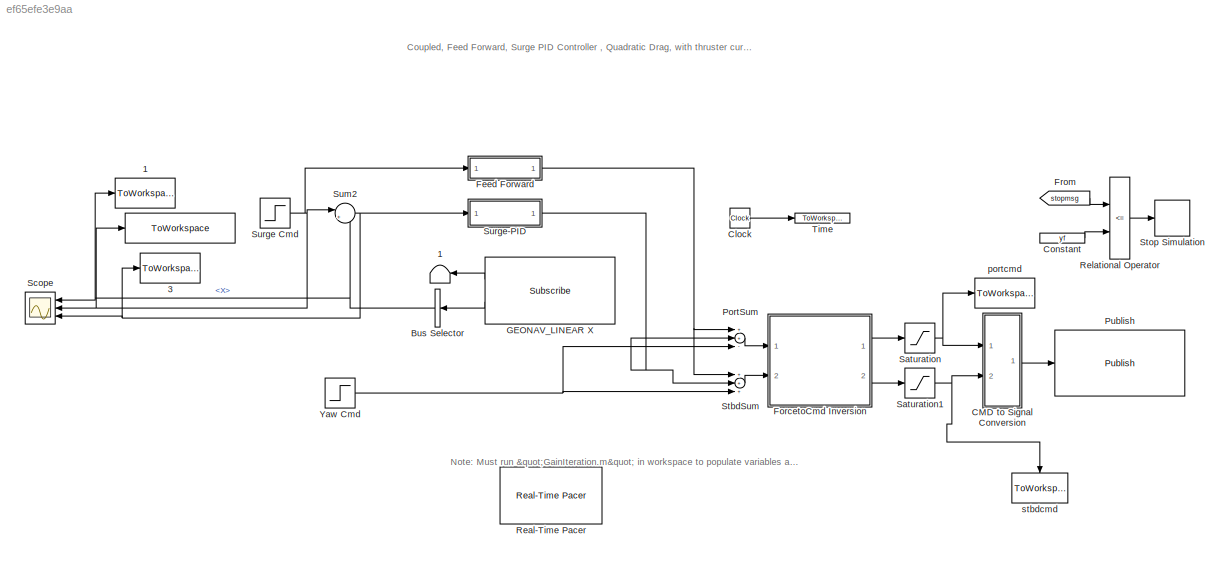
MODEL slx_ef65efe3e9aa
KIND model
CONFIG AbsTol = auto
CONFIG FixedStep = auto
CONFIG MaxStep = auto
CONFIG MinStep = auto
CONFIG RelTol = 1e-3
CONFIG SampleTimeConstraint = Unconstrained
CONFIG Solver = VariableStepAuto
CONFIG SolverMode = Auto
CONFIG SolverName = VariableStepAuto
CONFIG StartTime = 0.0
CONFIG StopTime = sim_time
BLOCK [ToWorkspace]  
  FixptAsFi = on
  MaxDataPoints = inf
  Ports = [1]
  SampleTime = -1
  Save2DSignal = 3-D array (concatenate along third dimension)
  VariableName = srgcmd
BLOCK [Terminator]  1
BLOCK [ToWorkspace]  3
  FixptAsFi = on
  MaxDataPoints = inf
  Ports = [1]
  SampleTime = -1
  Save2DSignal = 3-D array (concatenate along third dimension)
  VariableName = error
BLOCK [BusSelector] Bus Selector
  OutputSignals = Twist.Twist.Linear.X
  Ports = [1, 1]
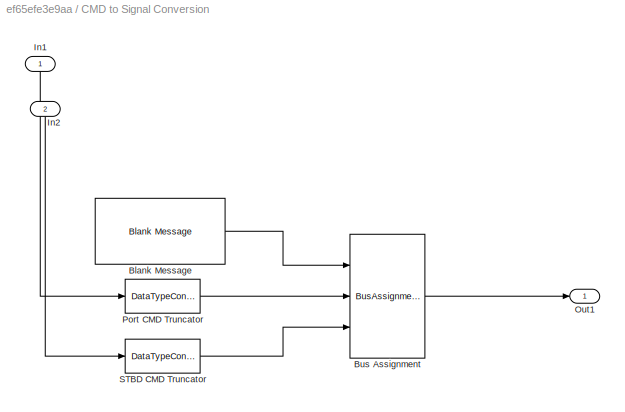
BLOCK [SubSystem] CMD to Signal Conversion
  Ports = [2, 1]
  RequestExecContextInheritance = off
  Variant = off
BLOCK [Reference] CMD to Signal Conversion/Blank Message  REF=robotlib/Blank Message
  Ports = [0, 1]
  SourceBlock = robotlib/Blank Message
  SourceLibraryInfo = This block requires Robotics System Toolbox
  SourceType = ROS Blank Message
BLOCK [BusAssignment] CMD to Signal Conversion/Bus Assignment
  AssignedSignals = Left,Right
  Ports = [3, 1]
BLOCK [Inport] CMD to Signal Conversion/In1
  IconDisplay = Port number
BLOCK [Inport] CMD to Signal Conversion/In2
  IconDisplay = Port number
  Port = 2
BLOCK [Outport] CMD to Signal Conversion/Out1
  IconDisplay = Port number
BLOCK [DataTypeConversion] CMD to Signal Conversion/Port CMD Truncator
  OutDataTypeStr = single
  RndMeth = Floor
  SaturateOnIntegerOverflow = off
BLOCK [DataTypeConversion] CMD to Signal Conversion/STBD CMD Truncator
  OutDataTypeStr = single
  RndMeth = Floor
  SaturateOnIntegerOverflow = off
BLOCK [Clock] Clock
BLOCK [Constant] Constant
  Commented = on
  Value = yf
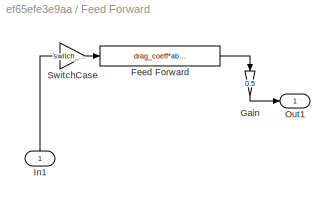
BLOCK [SubSystem] Feed Forward
  Ports = [1, 1]
  RequestExecContextInheritance = off
  Variant = off
BLOCK [Fcn] Feed Forward/Feed Forward
  Expr = drag_coeff*abs(u)*u
BLOCK [Gain] Feed Forward/Gain
  Gain = 0.5
  OutDataTypeStr = Inherit: Inherit via internal rule
  ParamDataTypeStr = Inherit: Inherit via internal rule
  SaturateOnIntegerOverflow = off
BLOCK [Inport] Feed Forward/In1
  IconDisplay = Port number
BLOCK [Outport] Feed Forward/Out1
  IconDisplay = Port number
BLOCK [Gain] Feed Forward/SwitchCase
  Gain = switch_case
  OutDataTypeStr = Inherit: Inherit via internal rule
  ParamDataTypeStr = Inherit: Inherit via internal rule
  SaturateOnIntegerOverflow = off
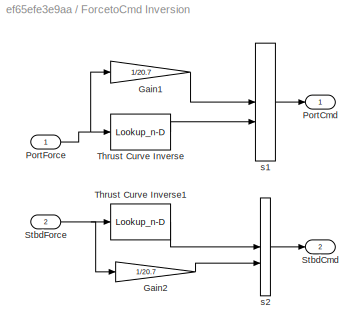
BLOCK [SubSystem] ForcetoCmd Inversion
  Ports = [2, 2]
  RequestExecContextInheritance = off
  Variant = off
BLOCK [Gain] ForcetoCmd Inversion/Gain1
  Gain = 1/20.7
  OutDataTypeStr = Inherit: Inherit via internal rule
  ParamDataTypeStr = Inherit: Inherit via internal rule
  SaturateOnIntegerOverflow = off
BLOCK [Gain] ForcetoCmd Inversion/Gain2
  Gain = 1/20.7
  OutDataTypeStr = Inherit: Inherit via internal rule
  ParamDataTypeStr = Inherit: Inherit via internal rule
  SaturateOnIntegerOverflow = off
BLOCK [Outport] ForcetoCmd Inversion/PortCmd
  IconDisplay = Port number
BLOCK [Inport] ForcetoCmd Inversion/PortForce
  IconDisplay = Port number
BLOCK [Outport] ForcetoCmd Inversion/StbdCmd
  IconDisplay = Port number
  Port = 2
BLOCK [Inport] ForcetoCmd Inversion/StbdForce
  IconDisplay = Port number
  Port = 2
BLOCK [Lookup_n-D] ForcetoCmd Inversion/Thrust Curve Inverse
  BreakpointsForDimension1 = table_data
  ExtrapMethod = Clip
  InternalRulePriority = Speed
  NumberOfTableDimensions = 1
  Ports = [1, 1]
  RndMeth = Simplest
  Table = breakpoints1
  UseLastTableValue = on
BLOCK [Lookup_n-D] ForcetoCmd Inversion/Thrust Curve Inverse1
  BreakpointsForDimension1 = table_data
  ExtrapMethod = Clip
  InternalRulePriority = Speed
  NumberOfTableDimensions = 1
  Ports = [1, 1]
  RndMeth = Simplest
  Table = breakpoints1
  UseLastTableValue = on
BLOCK [ManualSwitch] ForcetoCmd Inversion/s1 
  CurrentSetting = 0
BLOCK [ManualSwitch] ForcetoCmd Inversion/s2
BLOCK [From] From
  Commented = on
  GotoTag = stopmsg
BLOCK [Reference] GEONAV_LINEAR X  REF=robotlib/Subscribe
  Ports = [0, 2]
  SourceBlock = robotlib/Subscribe
  SourceLibraryInfo = This block requires Robotics System Toolbox
  SourceType = ROS Subscribe
BLOCK [Sum] PortSum
  InputSameDT = off
  Inputs = ++-
  OutDataTypeStr = Inherit: Inherit via internal rule
  Ports = [3, 1]
  SaturateOnIntegerOverflow = off
BLOCK [Reference] Publish  REF=robotlib/Publish
  Ports = [1]
  SourceBlock = robotlib/Publish
  SourceLibraryInfo = This block requires Robotics System Toolbox
  SourceType = ROS Publish
BLOCK [Reference] Real-Time Pacer  REF=realtime_pacer_lib/Real-Time Pacer
  Ports = []
  SourceBlock = realtime_pacer_lib/Real-Time Pacer
  SourceType = RealTime_Pacer
BLOCK [RelationalOperator] Relational Operator
  Commented = on
  InputSameDT = off
  Operator = <=
  OutDataTypeStr = boolean
  Ports = [2, 1]
BLOCK [Saturate] Saturation
  InputPortMap = u0
  LowerLimit = -1
  Ports = [1, 1]
  UpperLimit = 1
BLOCK [Saturate] Saturation1
  InputPortMap = u0
  LowerLimit = -1
  Ports = [1, 1]
  UpperLimit = 1
BLOCK [Scope] Scope
  NumInputPorts = 3
  Ports = [3]
  ScopeSpecificationString = Simulink.scopes.TimeScopeBlockCfg('CurrentConfiguration', extmgr.ConfigurationSet(extmgr.Configuration('Core','General UI',true),extmgr.Configuration('Core','Source UI',true),extmgr.Configuration('Sources','WiredSimulink',true,'DataLoggingVariableName','ScopeData1'),extmgr.Configuration('Visuals','Time Domain',true,'SerializedDisplays',{struct('MinYLimReal','-0.37816','MaxYLimReal','0.47094','YLab...<+1437ch>
BLOCK [Sum] StbdSum
  InputSameDT = off
  Inputs = +++
  OutDataTypeStr = Inherit: Inherit via internal rule
  Ports = [3, 1]
  SaturateOnIntegerOverflow = off
BLOCK [Stop] Stop Simulation
  Commented = on
BLOCK [Sum] Sum2
  IconShape = round
  InputSameDT = off
  Inputs = |+-
  OutDataTypeStr = Inherit: Inherit via internal rule
  Ports = [2, 1]
  SaturateOnIntegerOverflow = off
BLOCK [Step] Surge Cmd
  After = vf
  Before = vo
  SampleTime = 0
  Time = 30
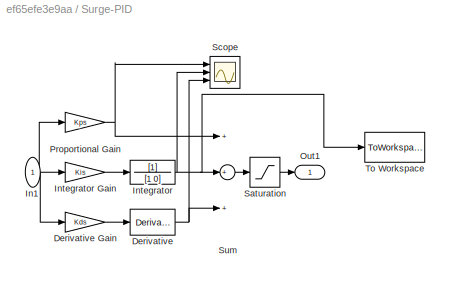
BLOCK [SubSystem] Surge-PID
  Ports = [1, 1]
  RequestExecContextInheritance = off
  Variant = off
BLOCK [Derivative] Surge-PID/Derivative
  CoefficientInTFapproximation = 0
BLOCK [Gain] Surge-PID/Derivative Gain
  Gain = Kds
  OutDataTypeStr = Inherit: Inherit via internal rule
  ParamDataTypeStr = Inherit: Inherit via internal rule
  SaturateOnIntegerOverflow = off
BLOCK [Inport] Surge-PID/In1
  IconDisplay = Port number
BLOCK [TransferFcn] Surge-PID/Integrator
  Denominator = [1 0]
BLOCK [Gain] Surge-PID/Integrator Gain
  Gain = Kis
  OutDataTypeStr = Inherit: Inherit via internal rule
  ParamDataTypeStr = Inherit: Inherit via internal rule
  SaturateOnIntegerOverflow = off
BLOCK [Outport] Surge-PID/Out1
  IconDisplay = Port number
BLOCK [Gain] Surge-PID/Proportional Gain
  Gain = Kps
  OutDataTypeStr = Inherit: Inherit via internal rule
  ParamDataTypeStr = Inherit: Inherit via internal rule
  SaturateOnIntegerOverflow = off
BLOCK [Saturate] Surge-PID/Saturation
  InputPortMap = u0
  LowerLimit = 0
  Ports = [1, 1]
  UpperLimit = inf
BLOCK [Scope] Surge-PID/Scope
  NumInputPorts = 3
  Ports = [3]
  ScopeSpecificationString = Simulink.scopes.TimeScopeBlockCfg('CurrentConfiguration', extmgr.ConfigurationSet(extmgr.Configuration('Core','General UI',true),extmgr.Configuration('Core','Source UI',true),extmgr.Configuration('Sources','WiredSimulink',true,'DataLoggingVariableName','ScopeData1'),extmgr.Configuration('Visuals','Time Domain',true,'SerializedDisplays',{struct('MinYLimReal','-0.28975','MaxYLimReal','2.25442','YLab...<+1431ch>
BLOCK [Sum] Surge-PID/Sum
  InputSameDT = off
  Inputs = +++
  OutDataTypeStr = Inherit: Inherit via internal rule
  Ports = [3, 1]
  SaturateOnIntegerOverflow = off
BLOCK [ToWorkspace] Surge-PID/To Workspace
  FixptAsFi = on
  MaxDataPoints = inf
  Ports = [1]
  SampleTime = -1
  Save2DSignal = 3-D array (concatenate along third dimension)
  VariableName = surgeint
BLOCK [ToWorkspace] Time
  FixptAsFi = on
  MaxDataPoints = inf
  Ports = [1]
  SampleTime = -1
  Save2DSignal = 3-D array (concatenate along third dimension)
  VariableName = time
BLOCK [Step] Yaw Cmd
  After = yf
  Before = yo
  SampleTime = 0
BLOCK [ToWorkspace] portcmd
  FixptAsFi = on
  MaxDataPoints = inf
  Ports = [1]
  SampleTime = -1
  Save2DSignal = 3-D array (concatenate along third dimension)
  VariableName = portcmd
BLOCK [ToWorkspace] stbdcmd
  FixptAsFi = on
  MaxDataPoints = inf
  Ports = [1]
  SampleTime = -1
  Save2DSignal = 3-D array (concatenate along third dimension)
  VariableName = stbdcmd
ANNOTATION (root): Note: Must run "GainIteration.m" in workspace to populate variables and lookup table!
ANNOTATION (root): Coupled, Feed Forward, Surge PID Controller , Quadratic Drag, with thruster curve lookup table.
NET Bus Selector:1 ->  1:1, Scope:1, Sum2:2
LINE CMD to Signal Conversion/Blank Message:1 -> CMD to Signal Conversion/Bus Assignment:1
LINE CMD to Signal Conversion/Bus Assignment:1 -> CMD to Signal Conversion/Out1:1
LINE CMD to Signal Conversion/In1:1 -> CMD to Signal Conversion/Port CMD Truncator:1
LINE CMD to Signal Conversion/In2:1 -> CMD to Signal Conversion/STBD CMD Truncator:1
LINE CMD to Signal Conversion/Port CMD Truncator:1 -> CMD to Signal Conversion/Bus Assignment:2
LINE CMD to Signal Conversion/STBD CMD Truncator:1 -> CMD to Signal Conversion/Bus Assignment:3
LINE CMD to Signal Conversion:1 -> Publish:1
LINE Clock:1 -> Time:1
LINE Constant:1 -> Relational Operator:2
LINE Feed Forward/Feed Forward:1 -> Feed Forward/Gain:1
LINE Feed Forward/Gain:1 -> Feed Forward/Out1:1
LINE Feed Forward/In1:1 -> Feed Forward/SwitchCase:1
LINE Feed Forward/SwitchCase:1 -> Feed Forward/Feed Forward:1
NET Feed Forward:1 -> PortSum:1, StbdSum:1
LINE ForcetoCmd Inversion/Gain1:1 -> ForcetoCmd Inversion/s1 :1
LINE ForcetoCmd Inversion/Gain2:1 -> ForcetoCmd Inversion/s2:2
NET ForcetoCmd Inversion/PortForce:1 -> ForcetoCmd Inversion/Gain1:1, ForcetoCmd Inversion/Thrust Curve Inverse:1
NET ForcetoCmd Inversion/StbdForce:1 -> ForcetoCmd Inversion/Gain2:1, ForcetoCmd Inversion/Thrust Curve Inverse1:1
LINE ForcetoCmd Inversion/Thrust Curve Inverse1:1 -> ForcetoCmd Inversion/s2:1
LINE ForcetoCmd Inversion/Thrust Curve Inverse:1 -> ForcetoCmd Inversion/s1 :2
LINE ForcetoCmd Inversion/s1 :1 -> ForcetoCmd Inversion/PortCmd:1
LINE ForcetoCmd Inversion/s2:1 -> ForcetoCmd Inversion/StbdCmd:1
LINE ForcetoCmd Inversion:1 -> Saturation:1
LINE ForcetoCmd Inversion:2 -> Saturation1:1
LINE From:1 -> Relational Operator:1
LINE GEONAV_LINEAR X:1 ->  1:1
LINE GEONAV_LINEAR X:2 -> Bus Selector:1
LINE PortSum:1 -> ForcetoCmd Inversion:1
LINE Relational Operator:1 -> Stop Simulation:1
NET Saturation1:1 -> CMD to Signal Conversion:2, stbdcmd:1
NET Saturation:1 -> CMD to Signal Conversion:1, portcmd:1
LINE StbdSum:1 -> ForcetoCmd Inversion:2
NET Sum2:1 ->  3:1, Scope:3, Surge-PID:1
NET Surge Cmd:1 ->  :1, Feed Forward:1, Scope:2, Sum2:1
LINE Surge-PID/Derivative Gain:1 -> Surge-PID/Derivative:1
NET Surge-PID/Derivative:1 -> Surge-PID/Scope:3, Surge-PID/Sum:3
NET Surge-PID/In1:1 -> Surge-PID/Derivative Gain:1, Surge-PID/Integrator Gain:1, Surge-PID/Proportional Gain:1
LINE Surge-PID/Integrator Gain:1 -> Surge-PID/Integrator:1
NET Surge-PID/Integrator:1 -> Surge-PID/Scope:2, Surge-PID/Sum:2, Surge-PID/To Workspace:1
NET Surge-PID/Proportional Gain:1 -> Surge-PID/Scope:1, Surge-PID/Sum:1
LINE Surge-PID/Saturation:1 -> Surge-PID/Out1:1
LINE Surge-PID/Sum:1 -> Surge-PID/Saturation:1
NET Surge-PID:1 -> PortSum:2, StbdSum:2
NET Yaw Cmd:1 -> PortSum:3, StbdSum:3
note: NET lines group one-source signal fan-out (src -> all destinations, sorted); 1:1 wires keep LINE
